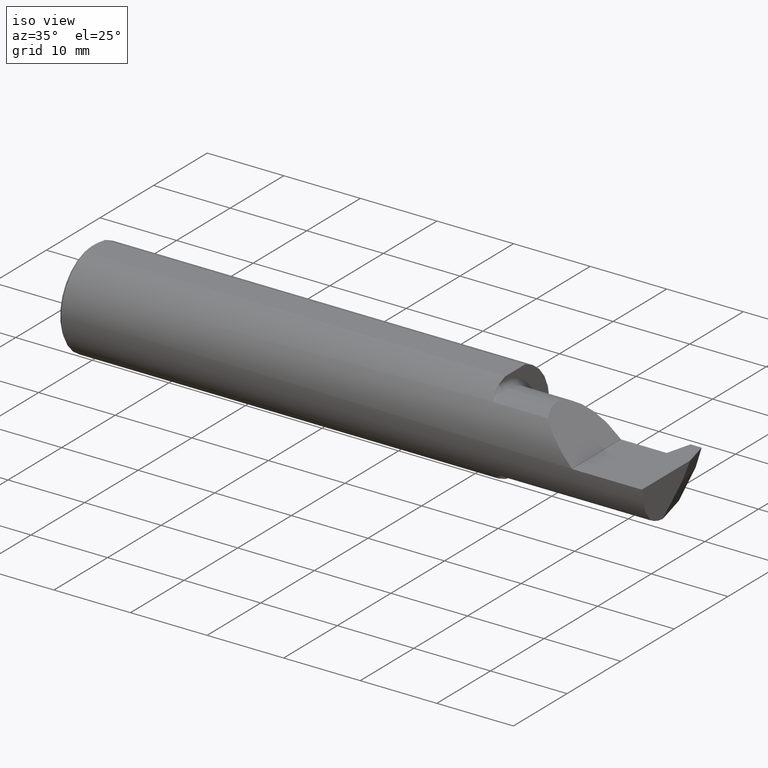
[diagram: clean part render]
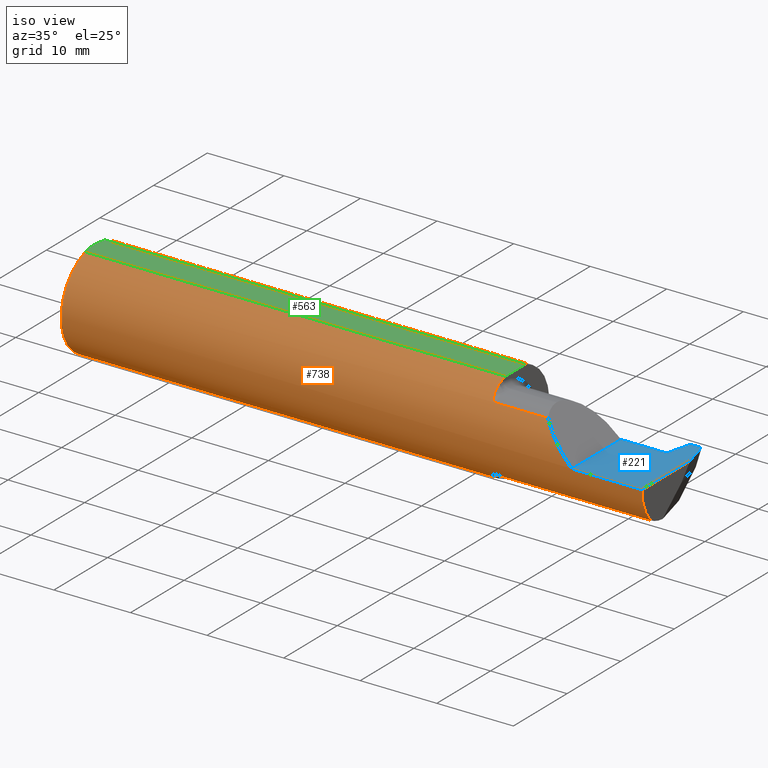
[diagram: same view with three faces highlighted in distinct colors, each labeled with its STEP entity id]
A machine part, iso view with three faces highlighted in distinct colors.
Their STEP definitions:

[orange] entity #738 — the highlighted cylindrical surface (partial cylindrical patch) has radius 6.3462 mm, axis along (-1, -0, -0).
#6 = CARTESIAN_POINT ( 'NONE',  ( 2.193416617075089725, -0.1842851675631634878, -0.1687160800144227035 ) ) ;
#14 = AXIS2_PLACEMENT_3D ( 'NONE', #475, #753, #239 ) ;
#15 = ORIENTED_EDGE ( 'NONE', *, *, #106, .T. ) ;
#16 = ORIENTED_EDGE ( 'NONE', *, *, #57, .T. ) ;
#25 = CARTESIAN_POINT ( 'NONE',  ( 3.000000000000000444, -0.2498499999999999610, -6.123031769111886291E-17 ) ) ;
#41 = CARTESIAN_POINT ( 'NONE',  ( 0.01500000000000188856, 0.07331916529803116089, 0.2388499999999999790 ) ) ;
#44 = DIRECTION ( 'NONE',  ( -1.000000000000000000, -0.000000000000000000, -0.000000000000000000 ) ) ;
#47 = DIRECTION ( 'NONE',  ( 1.000000000000000000, -0.000000000000000000, -0.000000000000000000 ) ) ;
#52 = EDGE_CURVE ( 'NONE', #965, #243, #565, .T. ) ;
#57 = EDGE_CURVE ( 'NONE', #146, #731, #251, .T. ) ;
#63 = CARTESIAN_POINT ( 'NONE',  ( 0.01500000000000188856, 0.000000000000000000, -0.2498499999999999888 ) ) ;
#66 = CIRCLE ( 'NONE', #14, 0.2498499999999999888 ) ;
#67 = ORIENTED_EDGE ( 'NONE', *, *, #908, .F. ) ;
#75 = VERTEX_POINT ( 'NONE', #933 ) ;
#95 = EDGE_CURVE ( 'NONE', #612, #876, #926, .T. ) ;
#102 = VERTEX_POINT ( 'NONE', #627 ) ;
#105 = CARTESIAN_POINT ( 'NONE',  ( 2.176293471060600559, -0.1495312910450006805, 0.2006610765018840559 ) ) ;
#106 = EDGE_CURVE ( 'NONE', #916, #876, #277, .T. ) ;
#109 = DIRECTION ( 'NONE',  ( 1.000000000000000000, 0.000000000000000000, 0.000000000000000000 ) ) ;
#112 = CARTESIAN_POINT ( 'NONE',  ( 2.175000000000000266, -0.1250709781968178946, -0.2162921009026707309 ) ) ;
#117 = FACE_OUTER_BOUND ( 'NONE', #696, .T. ) ;
#132 = DIRECTION ( 'NONE',  ( 0.000000000000000000, 0.000000000000000000, -1.000000000000000000 ) ) ;
#140 = ORIENTED_EDGE ( 'NONE', *, *, #406, .T. ) ;
#145 = CIRCLE ( 'NONE', #704, 0.2498499999999999888 ) ;
#146 = VERTEX_POINT ( 'NONE', #835 ) ;
#154 = CARTESIAN_POINT ( 'NONE',  ( 2.188813695058260844, -0.1803944576976549974, -0.1728909059399327819 ) ) ;
#184 = VERTEX_POINT ( 'NONE', #623 ) ;
#201 = ORIENTED_EDGE ( 'NONE', *, *, #549, .T. ) ;
#205 = VECTOR ( 'NONE', #571, 39.37007874015748143 ) ;
#220 = CARTESIAN_POINT ( 'NONE',  ( 2.200000000000000178, -0.1862082793164408501, -0.1665878123213411499 ) ) ;
#222 = CIRCLE ( 'NONE', #303, 0.2498499999999999888 ) ;
#228 = CARTESIAN_POINT ( 'NONE',  ( 2.196370180837897035, -0.1857053627698156684, -0.1671515984899562823 ) ) ;
#236 = CARTESIAN_POINT ( 'NONE',  ( 2.196379501438356030, -0.1857108401697049604, 0.1671455953877453160 ) ) ;
#237 = CARTESIAN_POINT ( 'NONE',  ( 2.180828878631586143, -0.1657311752962013496, -0.1871053287252796016 ) ) ;
#239 = DIRECTION ( 'NONE',  ( 0.000000000000000000, 0.000000000000000000, -1.000000000000000000 ) ) ;
#242 = CARTESIAN_POINT ( 'NONE',  ( 2.187118484253501194, -0.1780926133871663652, 0.1752686114729513633 ) ) ;
#243 = VERTEX_POINT ( 'NONE', #632 ) ;
#251 = LINE ( 'NONE', #25, #950 ) ;
#259 = VECTOR ( 'NONE', #544, 39.37007874015748143 ) ;
#277 = B_SPLINE_CURVE_WITH_KNOTS ( 'NONE', 3,
 ( #112, #778, #483, #237, #850, #315, #154, #542, #6, #228, #446, #617 ),
 .UNSPECIFIED., .F., .F.,
 ( 4, 2, 2, 2, 2, 4 ),
 ( 0.000000000000000000, 0.001097037258504890162, 0.001645555887757337412, 0.001919815202383554856, 0.002056944859696663037, 0.002194074517009771217 ),
 .UNSPECIFIED. ) ;
#285 = CARTESIAN_POINT ( 'NONE',  ( 3.000000000000000444, -0.1862082793164407113, -0.1665878123213411777 ) ) ;
#286 = CARTESIAN_POINT ( 'NONE',  ( 2.175000000000000266, -0.07331916529803114702, 0.2388499999999999790 ) ) ;
#292 = EDGE_CURVE ( 'NONE', #938, #102, #320, .T. ) ;
#299 = VECTOR ( 'NONE', #665, 39.37007874015748143 ) ;
#303 = AXIS2_PLACEMENT_3D ( 'NONE', #492, #356, #132 ) ;
#310 = ORIENTED_EDGE ( 'NONE', *, *, #825, .T. ) ;
#315 = CARTESIAN_POINT ( 'NONE',  ( 2.187135037345901978, -0.1781181496382315821, -0.1752430622336076105 ) ) ;
#320 = B_SPLINE_CURVE_WITH_KNOTS ( 'NONE', 3,
 ( #466, #925, #236, #777, #709, #569, #242, #866, #722, #105, #545, #559 ),
 .UNSPECIFIED., .F., .F.,
 ( 4, 2, 2, 2, 2, 4 ),
 ( 0.000000000000000000, 0.0001393948641635522000, 0.0002787897283271044001, 0.0005575794566542089086, 0.001115158913308419552, 0.002230317826616845175 ),
 .UNSPECIFIED. ) ;
#326 = CARTESIAN_POINT ( 'NONE',  ( 3.000000000000000444, 0.000000000000000000, 0.000000000000000000 ) ) ;
#331 = EDGE_CURVE ( 'NONE', #75, #841, #621, .T. ) ;
#336 = DIRECTION ( 'NONE',  ( 0.000000000000000000, 0.000000000000000000, 1.000000000000000000 ) ) ;
#341 = CARTESIAN_POINT ( 'NONE',  ( 2.175000000000000266, 0.000000000000000000, 0.000000000000000000 ) ) ;
#344 = EDGE_CURVE ( 'NONE', #731, #75, #145, .T. ) ;
#350 = ORIENTED_EDGE ( 'NONE', *, *, #915, .F. ) ;
#356 = DIRECTION ( 'NONE',  ( 1.000000000000000000, -0.000000000000000000, -0.000000000000000000 ) ) ;
#368 = CIRCLE ( 'NONE', #902, 0.2498499999999999888 ) ;
#372 = CARTESIAN_POINT ( 'NONE',  ( 2.175000000000000266, -0.1250709781968178946, -0.2162921009026707309 ) ) ;
#388 = DIRECTION ( 'NONE',  ( -1.000000000000000000, -0.000000000000000000, -0.000000000000000000 ) ) ;
#399 = CIRCLE ( 'NONE', #648, 0.2498499999999999888 ) ;
#406 = EDGE_CURVE ( 'NONE', #243, #845, #222, .T. ) ;
#407 = DIRECTION ( 'NONE',  ( 0.000000000000000000, 0.000000000000000000, -1.000000000000000000 ) ) ;
#413 = CARTESIAN_POINT ( 'NONE',  ( 0.01500000000000188856, 0.000000000000000000, 0.000000000000000000 ) ) ;
#435 = ORIENTED_EDGE ( 'NONE', *, *, #588, .F. ) ;
#436 = CARTESIAN_POINT ( 'NONE',  ( 2.175000000000000266, 0.000000000000000000, 0.000000000000000000 ) ) ;
#443 = LINE ( 'NONE', #982, #299 ) ;
#445 = LINE ( 'NONE', #708, #259 ) ;
#446 = CARTESIAN_POINT ( 'NONE',  ( 2.198145221810430261, -0.1862082793164407390, -0.1665878123213412054 ) ) ;
#453 = DIRECTION ( 'NONE',  ( 0.000000000000000000, 0.000000000000000000, -1.000000000000000000 ) ) ;
#466 = CARTESIAN_POINT ( 'NONE',  ( 2.200000000000000178, -0.1862082793164408501, 0.1665878123213411499 ) ) ;
#475 = CARTESIAN_POINT ( 'NONE',  ( 3.000000000000000444, 0.000000000000000000, 0.000000000000000000 ) ) ;
#483 = CARTESIAN_POINT ( 'NONE',  ( 2.176272908852844523, -0.1494261110292506300, -0.2007428102137029102 ) ) ;
#490 = ORIENTED_EDGE ( 'NONE', *, *, #344, .T. ) ;
#491 = CARTESIAN_POINT ( 'NONE',  ( 2.640000000000000124, -0.2498499999999999610, -6.123031769111885058E-17 ) ) ;
#492 = CARTESIAN_POINT ( 'NONE',  ( 0.01500000000000188856, 0.000000000000000000, 0.000000000000000000 ) ) ;
#542 = CARTESIAN_POINT ( 'NONE',  ( 2.192154182526138140, -0.1833665275214914070, -0.1697169404947845295 ) ) ;
#544 = DIRECTION ( 'NONE',  ( 1.000000000000000000, 0.000000000000000000, 0.000000000000000000 ) ) ;
#545 = CARTESIAN_POINT ( 'NONE',  ( 2.175000000000000266, -0.1376662443218121257, 0.2090088841401171182 ) ) ;
#549 = EDGE_CURVE ( 'NONE', #816, #184, #445, .T. ) ;
#550 = ORIENTED_EDGE ( 'NONE', *, *, #52, .T. ) ;
#559 = CARTESIAN_POINT ( 'NONE',  ( 2.175000000000000266, -0.1250709781968178946, 0.2162921009026707309 ) ) ;
#565 = LINE ( 'NONE', #943, #205 ) ;
#566 = CIRCLE ( 'NONE', #683, 0.2498499999999999888 ) ;
#569 = CARTESIAN_POINT ( 'NONE',  ( 2.188795016024909668, -0.1803726541953343254, 0.1729137444693446546 ) ) ;
#571 = DIRECTION ( 'NONE',  ( -1.000000000000000000, -0.000000000000000000, -0.000000000000000000 ) ) ;
#588 = EDGE_CURVE ( 'NONE', #146, #612, #66, .T. ) ;
#605 = CARTESIAN_POINT ( 'NONE',  ( 2.474762187678658965, -0.1862082793164407668, 0.1665878123213410944 ) ) ;
#610 = ORIENTED_EDGE ( 'NONE', *, *, #776, .F. ) ;
#612 = VERTEX_POINT ( 'NONE', #285 ) ;
#617 = CARTESIAN_POINT ( 'NONE',  ( 2.200000000000000178, -0.1862082793164408501, -0.1665878123213411499 ) ) ;
#621 =( BOUNDED_CURVE ( )  B_SPLINE_CURVE ( 3, ( #642, #673, #873, #957 ),
 .UNSPECIFIED., .F., .F. ) 
 B_SPLINE_CURVE_WITH_KNOTS ( ( 4, 4 ),
 ( 4.717792248621494267, 5.442230189998084278 ),
 .UNSPECIFIED. ) 
 CURVE ( )  GEOMETRIC_REPRESENTATION_ITEM ( )  RATIONAL_B_SPLINE_CURVE ( ( 1.000000000000000000, 0.9567418893490838849, 0.9567418893490838849, 1.000000000000000000 ) ) 
 REPRESENTATION_ITEM ( '' )  );
#623 = CARTESIAN_POINT ( 'NONE',  ( 2.175000000000000266, 0.07331916529803135518, 0.2388499999999999790 ) ) ;
#627 = CARTESIAN_POINT ( 'NONE',  ( 2.175000000000000266, -0.1250709781968178946, 0.2162921009026707309 ) ) ;
#632 = CARTESIAN_POINT ( 'NONE',  ( 0.01500000000000188509, -0.07331916529803116089, 0.2388499999999999790 ) ) ;
#642 = CARTESIAN_POINT ( 'NONE',  ( 2.640000000000000124, -0.2498463527850666721, 0.001349999999999153743 ) ) ;
#645 = CYLINDRICAL_SURFACE ( 'NONE', #848, 0.2498499999999999888 ) ;
#648 = AXIS2_PLACEMENT_3D ( 'NONE', #413, #47, #681 ) ;
#665 = DIRECTION ( 'NONE',  ( 1.000000000000000000, 0.000000000000000000, 0.000000000000000000 ) ) ;
#669 = CARTESIAN_POINT ( 'NONE',  ( 2.200000000000000178, -0.1862082793164408501, 0.1665878123213411499 ) ) ;
#673 = CARTESIAN_POINT ( 'NONE',  ( 2.578309325945297381, -0.2495130182814990771, 0.06304067405470248353 ) ) ;
#677 = DIRECTION ( 'NONE',  ( 1.000000000000000000, 0.000000000000000000, 0.000000000000000000 ) ) ;
#680 = ORIENTED_EDGE ( 'NONE', *, *, #95, .F. ) ;
#681 = DIRECTION ( 'NONE',  ( 0.000000000000000000, 0.000000000000000000, -1.000000000000000000 ) ) ;
#683 = AXIS2_PLACEMENT_3D ( 'NONE', #436, #677, #453 ) ;
#692 = VECTOR ( 'NONE', #388, 39.37007874015748143 ) ;
#696 = EDGE_LOOP ( 'NONE', ( #680, #435, #16, #490, #975, #67, #779, #610, #550, #140, #310, #201, #350, #15 ) ) ;
#704 = AXIS2_PLACEMENT_3D ( 'NONE', #843, #810, #815 ) ;
#708 = CARTESIAN_POINT ( 'NONE',  ( 3.000000000000000444, 0.07331916529803135518, 0.2388499999999998957 ) ) ;
#709 = CARTESIAN_POINT ( 'NONE',  ( 2.192133466839170097, -0.1833506539713362360, 0.1697341124089706277 ) ) ;
#722 = CARTESIAN_POINT ( 'NONE',  ( 2.180845932937570453, -0.1657762713748382466, 0.1870644631675826286 ) ) ;
#731 = VERTEX_POINT ( 'NONE', #491 ) ;
#738 = ADVANCED_FACE ( 'NONE', ( #117 ), #645, .T. ) ;
#753 = DIRECTION ( 'NONE',  ( 1.000000000000000000, 0.000000000000000000, 0.000000000000000000 ) ) ;
#776 = EDGE_CURVE ( 'NONE', #965, #102, #368, .T. ) ;
#777 = CARTESIAN_POINT ( 'NONE',  ( 2.193393762476562703, -0.1842731779358249555, 0.1687292568213746013 ) ) ;
#778 = CARTESIAN_POINT ( 'NONE',  ( 2.175000000000000266, -0.1376885313855323867, -0.2089959966382203826 ) ) ;
#779 = ORIENTED_EDGE ( 'NONE', *, *, #292, .T. ) ;
#799 = DIRECTION ( 'NONE',  ( -1.000000000000000000, -0.000000000000000000, -0.000000000000000000 ) ) ;
#810 = DIRECTION ( 'NONE',  ( -1.000000000000000000, -0.000000000000000000, -0.000000000000000000 ) ) ;
#815 = DIRECTION ( 'NONE',  ( 0.000000000000000000, 0.000000000000000000, 1.000000000000000000 ) ) ;
#816 = VERTEX_POINT ( 'NONE', #41 ) ;
#825 = EDGE_CURVE ( 'NONE', #845, #816, #399, .T. ) ;
#835 = CARTESIAN_POINT ( 'NONE',  ( 3.000000000000000444, -0.2498499999999999055, -6.123031769111886291E-17 ) ) ;
#841 = VERTEX_POINT ( 'NONE', #605 ) ;
#843 = CARTESIAN_POINT ( 'NONE',  ( 2.640000000000000124, 0.000000000000000000, 0.000000000000000000 ) ) ;
#845 = VERTEX_POINT ( 'NONE', #63 ) ;
#848 = AXIS2_PLACEMENT_3D ( 'NONE', #326, #799, #336 ) ;
#850 = CARTESIAN_POINT ( 'NONE',  ( 2.182791519316737094, -0.1709869259022376575, -0.1822998300512940761 ) ) ;
#862 = CARTESIAN_POINT ( 'NONE',  ( 2.524999999999999911, -0.1862082793164408501, -0.1665878123213411499 ) ) ;
#866 = CARTESIAN_POINT ( 'NONE',  ( 2.182805179170605125, -0.1710060601368943445, 0.1822803344833587302 ) ) ;
#873 = CARTESIAN_POINT ( 'NONE',  ( 2.520739702009155536, -0.2273412168872478156, 0.1206102979908444811 ) ) ;
#876 = VERTEX_POINT ( 'NONE', #220 ) ;
#902 = AXIS2_PLACEMENT_3D ( 'NONE', #341, #109, #407 ) ;
#908 = EDGE_CURVE ( 'NONE', #938, #841, #443, .T. ) ;
#915 = EDGE_CURVE ( 'NONE', #916, #184, #566, .T. ) ;
#916 = VERTEX_POINT ( 'NONE', #372 ) ;
#925 = CARTESIAN_POINT ( 'NONE',  ( 2.198136090905396411, -0.1862082793164408501, 0.1665878123213412054 ) ) ;
#926 = LINE ( 'NONE', #862, #692 ) ;
#933 = CARTESIAN_POINT ( 'NONE',  ( 2.640000000000000124, -0.2498463527850666721, 0.001349999999999153743 ) ) ;
#938 = VERTEX_POINT ( 'NONE', #669 ) ;
#943 = CARTESIAN_POINT ( 'NONE',  ( 3.000000000000000444, -0.07331916529803135518, 0.2388499999999998957 ) ) ;
#950 = VECTOR ( 'NONE', #44, 39.37007874015748143 ) ;
#957 = CARTESIAN_POINT ( 'NONE',  ( 2.474762187678658965, -0.1862082793164407668, 0.1665878123213410944 ) ) ;
#965 = VERTEX_POINT ( 'NONE', #286 ) ;
#975 = ORIENTED_EDGE ( 'NONE', *, *, #331, .T. ) ;
#982 = CARTESIAN_POINT ( 'NONE',  ( 2.524999999999999911, -0.1862082793164408501, 0.1665878123213411499 ) ) ;

[blue] entity #221 — the highlighted planar face has unit normal (-0, 0, -1).
#4 = VERTEX_POINT ( 'NONE', #39 ) ;
#7 = ORIENTED_EDGE ( 'NONE', *, *, #927, .F. ) ;
#12 = VECTOR ( 'NONE', #260, 39.37007874015748143 ) ;
#25 = CARTESIAN_POINT ( 'NONE',  ( 3.000000000000000444, -0.2498499999999999610, -6.123031769111886291E-17 ) ) ;
#39 = CARTESIAN_POINT ( 'NONE',  ( 3.000000000000000444, 0.1070816154887437449, 0.000000000000000000 ) ) ;
#44 = DIRECTION ( 'NONE',  ( -1.000000000000000000, -0.000000000000000000, -0.000000000000000000 ) ) ;
#57 = EDGE_CURVE ( 'NONE', #146, #731, #251, .T. ) ;
#69 = EDGE_CURVE ( 'NONE', #852, #302, #183, .T. ) ;
#91 = VECTOR ( 'NONE', #717, 39.37007874015748854 ) ;
#146 = VERTEX_POINT ( 'NONE', #835 ) ;
#151 = CARTESIAN_POINT ( 'NONE',  ( 2.856000360214729472, 0.1101499999999999285, 0.000000000000000000 ) ) ;
#156 = DIRECTION ( 'NONE',  ( 0.2503800040544345018, 0.9681476403781096307, -0.000000000000000000 ) ) ;
#167 = CARTESIAN_POINT ( 'NONE',  ( 2.640000000000000124, 0.2999999999999999889, -6.123031769111886291E-17 ) ) ;
#174 = CARTESIAN_POINT ( 'NONE',  ( 3.000000000000000444, 0.2999999999999999889, -6.123031769111886291E-17 ) ) ;
#176 = ORIENTED_EDGE ( 'NONE', *, *, #69, .T. ) ;
#183 = LINE ( 'NONE', #724, #12 ) ;
#186 = VECTOR ( 'NONE', #853, 39.37007874015748143 ) ;
#196 = EDGE_CURVE ( 'NONE', #146, #4, #554, .T. ) ;
#199 = VECTOR ( 'NONE', #756, 39.37007874015748143 ) ;
#202 = LINE ( 'NONE', #877, #607 ) ;
#221 = ADVANCED_FACE ( 'NONE', ( #476 ), #706, .F. ) ;
#245 = DIRECTION ( 'NONE',  ( 1.000000000000000000, 8.537024980200913523E-16, -0.000000000000000000 ) ) ;
#251 = LINE ( 'NONE', #25, #950 ) ;
#260 = DIRECTION ( 'NONE',  ( -1.000000000000000000, 4.600533710977337560E-14, 0.000000000000000000 ) ) ;
#281 = CARTESIAN_POINT ( 'NONE',  ( 2.876000360214729490, 0.1101499999999999563, 0.000000000000000000 ) ) ;
#302 = VERTEX_POINT ( 'NONE', #403 ) ;
#313 = DIRECTION ( 'NONE',  ( -0.000000000000000000, 1.000000000000000000, -0.000000000000000000 ) ) ;
#373 = AXIS2_PLACEMENT_3D ( 'NONE', #167, #472, #849 ) ;
#379 = VERTEX_POINT ( 'NONE', #415 ) ;
#401 = CARTESIAN_POINT ( 'NONE',  ( 2.963000000000000078, 0.2501499999999999280, 0.000000000000000000 ) ) ;
#403 = CARTESIAN_POINT ( 'NONE',  ( 2.909103411012277540, 0.2381499999999800443, -6.123031769111886291E-17 ) ) ;
#415 = CARTESIAN_POINT ( 'NONE',  ( 2.640000000000000124, 0.1101499999999999563, -6.123031769111885058E-17 ) ) ;
#460 = VERTEX_POINT ( 'NONE', #281 ) ;
#472 = DIRECTION ( 'NONE',  ( -0.000000000000000000, 0.000000000000000000, -1.000000000000000000 ) ) ;
#476 = FACE_OUTER_BOUND ( 'NONE', #561, .T. ) ;
#491 = CARTESIAN_POINT ( 'NONE',  ( 2.640000000000000124, -0.2498499999999999610, -6.123031769111885058E-17 ) ) ;
#534 = ORIENTED_EDGE ( 'NONE', *, *, #622, .F. ) ;
#554 = LINE ( 'NONE', #174, #619 ) ;
#557 = ORIENTED_EDGE ( 'NONE', *, *, #782, .F. ) ;
#561 = EDGE_LOOP ( 'NONE', ( #176, #7, #839, #827, #534, #720, #863, #557 ) ) ;
#607 = VECTOR ( 'NONE', #245, 39.37007874015748143 ) ;
#619 = VECTOR ( 'NONE', #313, 39.37007874015748143 ) ;
#622 = EDGE_CURVE ( 'NONE', #731, #379, #682, .T. ) ;
#682 = LINE ( 'NONE', #820, #186 ) ;
#694 = CARTESIAN_POINT ( 'NONE',  ( 2.912206822024553166, 0.2501499999999999280, 0.000000000000000000 ) ) ;
#706 = PLANE ( 'NONE',  #373 ) ;
#713 = LINE ( 'NONE', #401, #91 ) ;
#717 = DIRECTION ( 'NONE',  ( 0.2503800040544378880, -0.9681476403781087425, 0.000000000000000000 ) ) ;
#720 = ORIENTED_EDGE ( 'NONE', *, *, #57, .F. ) ;
#724 = CARTESIAN_POINT ( 'NONE',  ( 2.639999999999997460, 0.2381499999999924511, -6.123031769111886291E-17 ) ) ;
#725 = VECTOR ( 'NONE', #156, 39.37007874015748143 ) ;
#728 = EDGE_CURVE ( 'NONE', #869, #460, #202, .T. ) ;
#731 = VERTEX_POINT ( 'NONE', #491 ) ;
#739 = CARTESIAN_POINT ( 'NONE',  ( 2.175000000000000266, 0.1101499999999999840, -6.123031769111886291E-17 ) ) ;
#752 = CARTESIAN_POINT ( 'NONE',  ( 2.966103411012276148, 0.2381499999999774908, 0.000000000000000000 ) ) ;
#756 = DIRECTION ( 'NONE',  ( 1.000000000000000000, 0.000000000000000000, 0.000000000000000000 ) ) ;
#760 = LINE ( 'NONE', #694, #725 ) ;
#782 = EDGE_CURVE ( 'NONE', #852, #4, #713, .T. ) ;
#820 = CARTESIAN_POINT ( 'NONE',  ( 2.640000000000000124, 0.2999999999999999889, -6.123031769111886291E-17 ) ) ;
#827 = ORIENTED_EDGE ( 'NONE', *, *, #875, .F. ) ;
#835 = CARTESIAN_POINT ( 'NONE',  ( 3.000000000000000444, -0.2498499999999999055, -6.123031769111886291E-17 ) ) ;
#839 = ORIENTED_EDGE ( 'NONE', *, *, #728, .F. ) ;
#849 = DIRECTION ( 'NONE',  ( -1.000000000000000000, 0.000000000000000000, 0.000000000000000000 ) ) ;
#852 = VERTEX_POINT ( 'NONE', #752 ) ;
#853 = DIRECTION ( 'NONE',  ( -0.000000000000000000, 1.000000000000000000, -0.000000000000000000 ) ) ;
#863 = ORIENTED_EDGE ( 'NONE', *, *, #196, .T. ) ;
#869 = VERTEX_POINT ( 'NONE', #151 ) ;
#875 = EDGE_CURVE ( 'NONE', #379, #869, #966, .T. ) ;
#877 = CARTESIAN_POINT ( 'NONE',  ( 2.876000360214729490, 0.1101499999999999563, 0.000000000000000000 ) ) ;
#927 = EDGE_CURVE ( 'NONE', #460, #302, #760, .T. ) ;
#950 = VECTOR ( 'NONE', #44, 39.37007874015748143 ) ;
#966 = LINE ( 'NONE', #739, #199 ) ;

[green] entity #563 — the highlighted planar face has unit normal (-0, 0, -1).
#28 = CARTESIAN_POINT ( 'NONE',  ( 0.004000000000001628989, 0.02507688590673098211, 0.2388499999999999790 ) ) ;
#41 = CARTESIAN_POINT ( 'NONE',  ( 0.01500000000000188856, 0.07331916529803116089, 0.2388499999999999790 ) ) ;
#52 = EDGE_CURVE ( 'NONE', #965, #243, #565, .T. ) ;
#53 = CARTESIAN_POINT ( 'NONE',  ( 0.004000000000001630723, -8.838795635097487697E-18, 0.2388499999999999790 ) ) ;
#64 = CARTESIAN_POINT ( 'NONE',  ( 0.01500000000000188509, -0.07331916529803116089, 0.2388499999999999790 ) ) ;
#114 = CARTESIAN_POINT ( 'NONE',  ( 0.01500000000000188856, 0.07331916529803116089, 0.2388499999999999790 ) ) ;
#165 = CARTESIAN_POINT ( 'NONE',  ( 0.000000000000000000, 0.1000000000000000056, 0.2388499999999999790 ) ) ;
#181 = DIRECTION ( 'NONE',  ( 0.000000000000000000, -1.000000000000000000, 0.000000000000000000 ) ) ;
#184 = VERTEX_POINT ( 'NONE', #623 ) ;
#190 = ORIENTED_EDGE ( 'NONE', *, *, #733, .T. ) ;
#205 = VECTOR ( 'NONE', #571, 39.37007874015748143 ) ;
#235 = FACE_OUTER_BOUND ( 'NONE', #267, .T. ) ;
#243 = VERTEX_POINT ( 'NONE', #632 ) ;
#259 = VECTOR ( 'NONE', #544, 39.37007874015748143 ) ;
#267 = EDGE_LOOP ( 'NONE', ( #452, #442, #190, #518, #381 ) ) ;
#286 = CARTESIAN_POINT ( 'NONE',  ( 2.175000000000000266, -0.07331916529803114702, 0.2388499999999999790 ) ) ;
#316 = VECTOR ( 'NONE', #181, 39.37007874015748143 ) ;
#327 = CARTESIAN_POINT ( 'NONE',  ( 0.004000000000001630723, -8.838795635097487697E-18, 0.2388499999999999790 ) ) ;
#329 = VERTEX_POINT ( 'NONE', #327 ) ;
#348 = CARTESIAN_POINT ( 'NONE',  ( 0.004000000000001633325, -0.02498450228869505615, 0.2388499999999999790 ) ) ;
#370 = B_SPLINE_CURVE_WITH_KNOTS ( 'NONE', 3,
 ( #53, #348, #577, #64 ),
 .UNSPECIFIED., .F., .F.,
 ( 4, 4 ),
 ( 0.007106848166584502080, 0.008972081732692345837 ),
 .UNSPECIFIED. ) ;
#377 = EDGE_CURVE ( 'NONE', #329, #243, #370, .T. ) ;
#381 = ORIENTED_EDGE ( 'NONE', *, *, #52, .F. ) ;
#431 = B_SPLINE_CURVE_WITH_KNOTS ( 'NONE', 3,
 ( #114, #795, #28, #495 ),
 .UNSPECIFIED., .F., .F.,
 ( 4, 4 ),
 ( 0.005234717643982266660, 0.007106848166584502080 ),
 .UNSPECIFIED. ) ;
#437 = AXIS2_PLACEMENT_3D ( 'NONE', #165, #551, #558 ) ;
#442 = ORIENTED_EDGE ( 'NONE', *, *, #549, .F. ) ;
#445 = LINE ( 'NONE', #708, #259 ) ;
#452 = ORIENTED_EDGE ( 'NONE', *, *, #701, .F. ) ;
#495 = CARTESIAN_POINT ( 'NONE',  ( 0.004000000000001630723, -8.838795635097487697E-18, 0.2388499999999999790 ) ) ;
#503 = LINE ( 'NONE', #935, #316 ) ;
#518 = ORIENTED_EDGE ( 'NONE', *, *, #377, .T. ) ;
#544 = DIRECTION ( 'NONE',  ( 1.000000000000000000, 0.000000000000000000, 0.000000000000000000 ) ) ;
#549 = EDGE_CURVE ( 'NONE', #816, #184, #445, .T. ) ;
#551 = DIRECTION ( 'NONE',  ( -0.000000000000000000, 0.000000000000000000, -1.000000000000000000 ) ) ;
#558 = DIRECTION ( 'NONE',  ( -1.000000000000000000, 0.000000000000000000, 0.000000000000000000 ) ) ;
#563 = ADVANCED_FACE ( 'NONE', ( #235 ), #705, .F. ) ;
#565 = LINE ( 'NONE', #943, #205 ) ;
#571 = DIRECTION ( 'NONE',  ( -1.000000000000000000, -0.000000000000000000, -0.000000000000000000 ) ) ;
#577 = CARTESIAN_POINT ( 'NONE',  ( 0.007978205860499350960, -0.04939097055354213506, 0.2388499999999999790 ) ) ;
#623 = CARTESIAN_POINT ( 'NONE',  ( 2.175000000000000266, 0.07331916529803135518, 0.2388499999999999790 ) ) ;
#632 = CARTESIAN_POINT ( 'NONE',  ( 0.01500000000000188509, -0.07331916529803116089, 0.2388499999999999790 ) ) ;
#701 = EDGE_CURVE ( 'NONE', #184, #965, #503, .T. ) ;
#705 = PLANE ( 'NONE',  #437 ) ;
#708 = CARTESIAN_POINT ( 'NONE',  ( 3.000000000000000444, 0.07331916529803135518, 0.2388499999999998957 ) ) ;
#733 = EDGE_CURVE ( 'NONE', #816, #329, #431, .T. ) ;
#795 = CARTESIAN_POINT ( 'NONE',  ( 0.008000051362619074735, 0.04946541355466502199, 0.2388499999999999790 ) ) ;
#816 = VERTEX_POINT ( 'NONE', #41 ) ;
#935 = CARTESIAN_POINT ( 'NONE',  ( 2.175000000000000266, 0.1000000000000000056, 0.2388499999999999790 ) ) ;
#943 = CARTESIAN_POINT ( 'NONE',  ( 3.000000000000000444, -0.07331916529803135518, 0.2388499999999998957 ) ) ;
#965 = VERTEX_POINT ( 'NONE', #286 ) ;